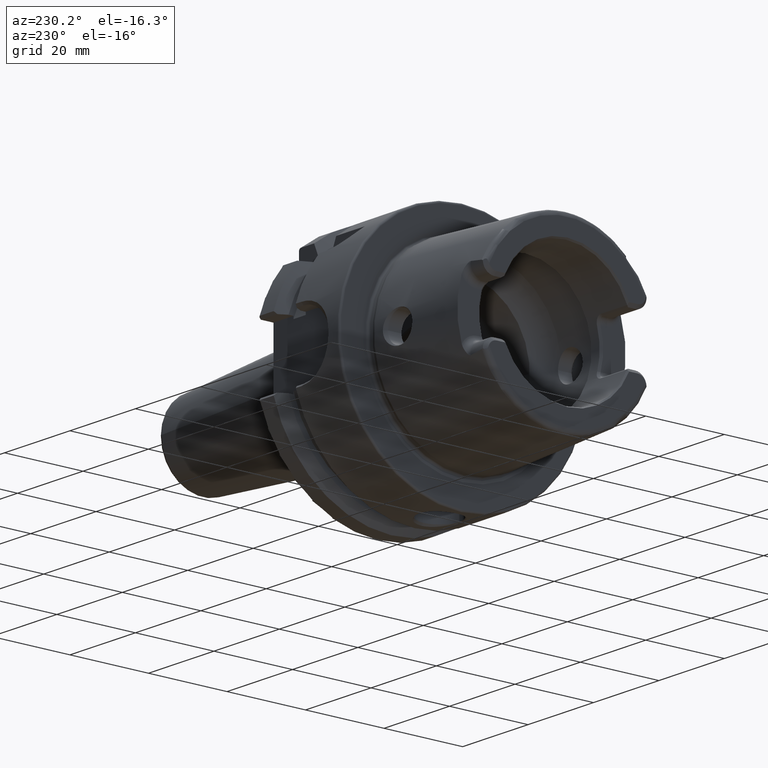
[diagram: clean part render]
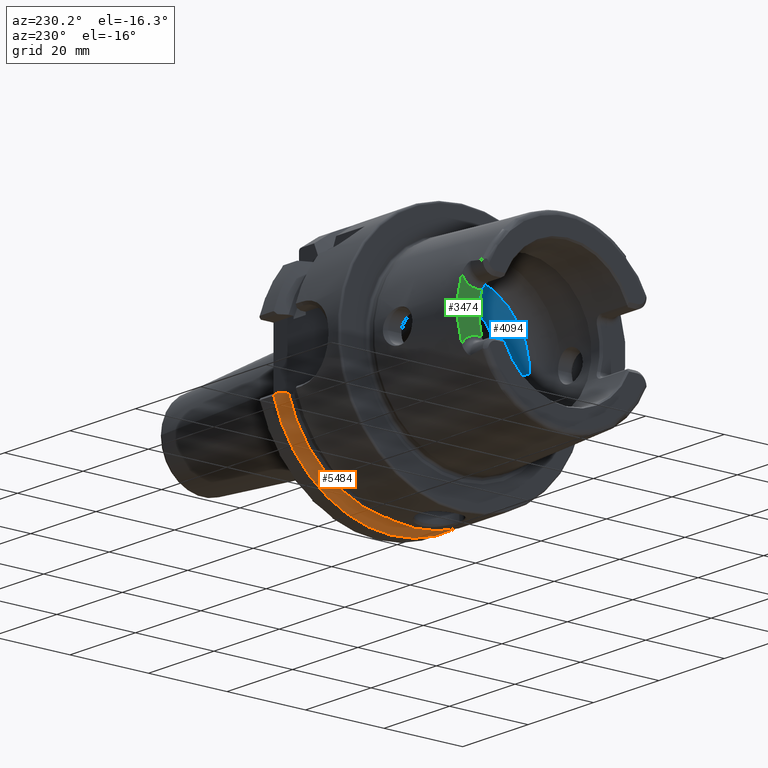
[diagram: same view with three faces highlighted in distinct colors, each labeled with its STEP entity id]
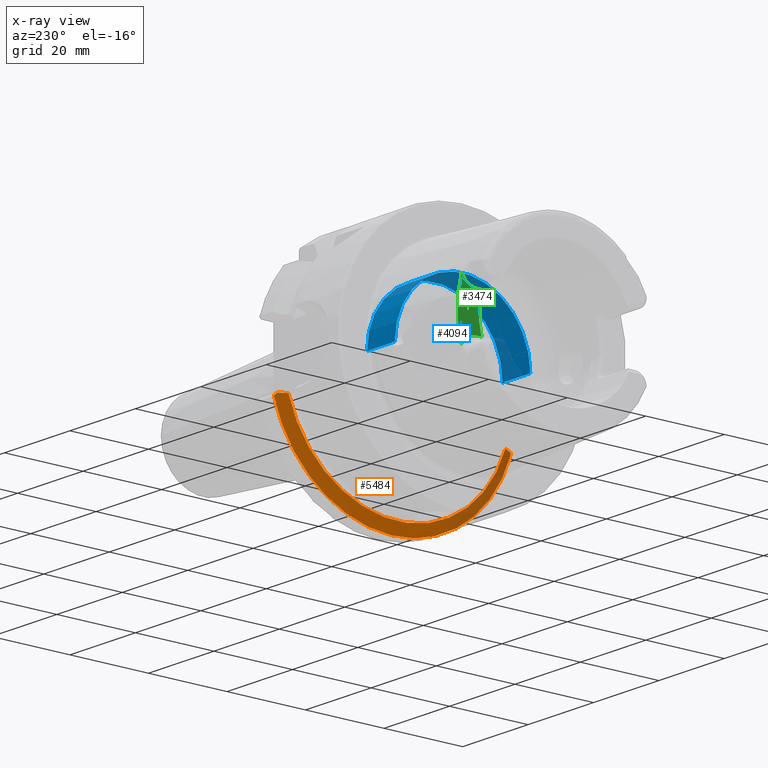
[diagram: x-ray of the same camera — body ghosted, the three highlighted faces saturated]
A machine part, auxiliary view with three faces highlighted in distinct colors.
The next image is the same camera in x-ray (body ghosted, the three faces saturated) — at least one of them is partly hidden behind the body in this view.
Their STEP definitions:

[orange] entity #5484 — the highlighted conical surface has half-angle 60 deg.
#2025=CARTESIAN_POINT('',(8.416338210270E-1,1.193014587568E0,
-3.386838789065E-1));
#2026=CARTESIAN_POINT('',(8.397325519795E-1,1.190348295228E0,
-3.360175865668E-1));
#2027=CARTESIAN_POINT('',(8.359491677279E-1,1.185035963371E0,
-3.307052547097E-1));
#2028=CARTESIAN_POINT('',(8.303316251898E-1,1.177128306281E0,
-3.227975976196E-1));
#2029=CARTESIAN_POINT('',(8.266248362832E-1,1.171896920848E0,
-3.175662121862E-1));
#2030=CARTESIAN_POINT('',(8.247810130361E-1,1.169291338583E0,
-3.149606299213E-1));
#2032=CARTESIAN_POINT('',(7.824803149606E-1,1.093234861416E0,
-3.149606299213E-1));
#2033=CARTESIAN_POINT('',(7.870729981538E-1,1.101513170390E0,
-3.149606299213E-1));
#2034=CARTESIAN_POINT('',(7.963300821951E-1,1.118184646874E0,
-3.149606299213E-1));
#2035=CARTESIAN_POINT('',(8.104299727961E-1,1.143535750108E0,
-3.149606299213E-1));
#2036=CARTESIAN_POINT('',(8.199734961844E-1,1.160667686648E0,
-3.149606299213E-1));
#2037=CARTESIAN_POINT('',(8.247810130361E-1,1.169291338583E0,
-3.149606299213E-1));
#2039=CARTESIAN_POINT('',(7.824803149606E-1,0.E0,0.E0));
#2040=DIRECTION('',(-1.E0,0.E0,0.E0));
#2041=DIRECTION('',(0.E0,9.609161313143E-1,-2.768396441624E-1));
#2042=AXIS2_PLACEMENT_3D('',#2039,#2040,#2041);
#2044=CARTESIAN_POINT('',(8.310344740385E-1,-1.169291338583E0,
-3.543307086614E-1));
#2045=CARTESIAN_POINT('',(8.254885380973E-1,-1.159254141223E0,
-3.543307086614E-1));
#2046=CARTESIAN_POINT('',(8.144971552515E-1,-1.139339874891E0,
-3.543307086614E-1));
#2047=CARTESIAN_POINT('',(7.983135657433E-1,-1.109951020004E0,
-3.543307086614E-1));
#2048=CARTESIAN_POINT('',(7.877245030106E-1,-1.090674883263E0,
-3.543307086614E-1));
#2049=CARTESIAN_POINT('',(7.824803149606E-1,-1.081116279368E0,
-3.543307086614E-1));
#2051=CARTESIAN_POINT('',(8.310344740385E-1,-1.169291338583E0,
-3.543307086614E-1));
#2052=CARTESIAN_POINT('',(8.327850921454E-1,-1.171722839934E0,
-3.567622100124E-1));
#2053=CARTESIAN_POINT('',(8.363022710633E-1,-1.176602806753E0,
-3.616421768322E-1));
#2054=CARTESIAN_POINT('',(8.398513265681E-1,-1.181516704977E0,
-3.665560750560E-1));
#2055=CARTESIAN_POINT('',(8.416338210270E-1,-1.183982137824E0,
-3.690215079028E-1));
#2057=CARTESIAN_POINT('',(8.416338210270E-1,0.E0,0.E0));
#2058=DIRECTION('',(1.E0,0.E0,0.E0));
#2059=DIRECTION('',(0.E0,-9.547030571660E-1,-2.975602000232E-1));
#2060=AXIS2_PLACEMENT_3D('',#2057,#2058,#2059);
#2819=CARTESIAN_POINT('',(7.824803149606E-1,1.093234861416E0,
-3.149606299213E-1));
#2820=VERTEX_POINT('',#2819);
#2851=CARTESIAN_POINT('',(7.824803149606E-1,-1.081116279368E0,
-3.543307086614E-1));
#2852=VERTEX_POINT('',#2851);
#3051=VERTEX_POINT('',#2051);
#3052=VERTEX_POINT('',#2055);
#3074=VERTEX_POINT('',#2025);
#3075=VERTEX_POINT('',#2030);
#5469=CARTESIAN_POINT('',(8.120570679938E-1,0.E0,0.E0));
#5470=DIRECTION('',(1.E0,0.E0,0.E0));
#5471=DIRECTION('',(0.E0,0.E0,1.E0));
#5472=AXIS2_PLACEMENT_3D('',#5469,#5470,#5471);
#5473=CONICAL_SURFACE('',#5472,1.188929041339E0,6.E1);
#5474=ORIENTED_EDGE('',*,*,#4846,.T.);
#5476=ORIENTED_EDGE('',*,*,#5475,.F.);
#5478=ORIENTED_EDGE('',*,*,#5477,.T.);
#5479=ORIENTED_EDGE('',*,*,#5428,.F.);
#5480=ORIENTED_EDGE('',*,*,#5401,.T.);
#5481=ORIENTED_EDGE('',*,*,#4750,.T.);
#5482=EDGE_LOOP('',(#5474,#5476,#5478,#5479,#5480,#5481));
#5483=FACE_OUTER_BOUND('',#5482,.F.);
#5484=ADVANCED_FACE('',(#5483),#5473,.T.);
#2031=B_SPLINE_CURVE_WITH_KNOTS('',3,(#2025,#2026,#2027,#2028,#2029,#2030),
.UNSPECIFIED.,.F.,.F.,(4,1,1,4),(0.E0,3.333333333333E-1,6.666666666667E-1,1.E0),
.UNSPECIFIED.);
#2038=B_SPLINE_CURVE_WITH_KNOTS('',3,(#2032,#2033,#2034,#2035,#2036,#2037),
.UNSPECIFIED.,.F.,.F.,(4,1,1,4),(0.E0,3.333333333333E-1,6.666666666667E-1,1.E0),
.UNSPECIFIED.);
#2043=CIRCLE('',#2042,1.137700602362E0);
#2050=B_SPLINE_CURVE_WITH_KNOTS('',3,(#2044,#2045,#2046,#2047,#2048,#2049),
.UNSPECIFIED.,.F.,.F.,(4,1,1,4),(0.E0,3.333333333333E-1,6.666666666667E-1,1.E0),
.UNSPECIFIED.);
#2056=B_SPLINE_CURVE_WITH_KNOTS('',3,(#2051,#2052,#2053,#2054,#2055),
.UNSPECIFIED.,.F.,.F.,(4,1,4),(0.E0,5.E-1,1.E0),.UNSPECIFIED.);
#2061=CIRCLE('',#2060,1.240157480315E0);
#4750=EDGE_CURVE('',#3052,#3074,#2061,.T.);
#4846=EDGE_CURVE('',#3074,#3075,#2031,.T.);
#5401=EDGE_CURVE('',#3051,#3052,#2056,.T.);
#5428=EDGE_CURVE('',#3051,#2852,#2050,.T.);
#5475=EDGE_CURVE('',#2820,#3075,#2038,.T.);
#5477=EDGE_CURVE('',#2820,#2852,#2043,.T.);

[blue] entity #4094 — the highlighted cylindrical surface (partial cylindrical patch) has radius 17.25 mm, axis along (1, 0, 0).
#841=CARTESIAN_POINT('',(0.E0,0.E0,0.E0));
#842=DIRECTION('',(1.E0,0.E0,0.E0));
#843=DIRECTION('',(0.E0,1.E0,0.E0));
#844=AXIS2_PLACEMENT_3D('',#841,#842,#843);
#851=CARTESIAN_POINT('',(3.346456692913E-1,0.E0,0.E0));
#852=DIRECTION('',(1.E0,0.E0,0.E0));
#853=DIRECTION('',(0.E0,1.E0,0.E0));
#854=AXIS2_PLACEMENT_3D('',#851,#852,#853);
#856=DIRECTION('',(1.E0,0.E0,5.379253814448E-13));
#857=VECTOR('',#856,3.346456692913E-1);
#858=CARTESIAN_POINT('',(0.E0,6.791338582677E-1,0.E0));
#859=LINE('',#858,#857);
#895=DIRECTION('',(1.E0,0.E0,-5.380587909867E-13));
#896=VECTOR('',#895,3.346456692913E-1);
#897=CARTESIAN_POINT('',(0.E0,-6.791338582677E-1,0.E0));
#898=LINE('',#897,#896);
#3146=CARTESIAN_POINT('',(0.E0,6.791338582677E-1,0.E0));
#3147=CARTESIAN_POINT('',(0.E0,-6.791338582677E-1,0.E0));
#3148=VERTEX_POINT('',#3146);
#3149=VERTEX_POINT('',#3147);
#3158=CARTESIAN_POINT('',(3.346456692913E-1,6.791338582677E-1,0.E0));
#3159=CARTESIAN_POINT('',(3.346456692913E-1,-6.791338582677E-1,0.E0));
#3160=VERTEX_POINT('',#3158);
#3161=VERTEX_POINT('',#3159);
#4080=CARTESIAN_POINT('',(0.E0,0.E0,0.E0));
#4081=DIRECTION('',(1.E0,0.E0,0.E0));
#4082=DIRECTION('',(0.E0,1.E0,0.E0));
#4083=AXIS2_PLACEMENT_3D('',#4080,#4081,#4082);
#4084=CYLINDRICAL_SURFACE('',#4083,6.791338582677E-1);
#4086=ORIENTED_EDGE('',*,*,#4085,.F.);
#4088=ORIENTED_EDGE('',*,*,#4087,.F.);
#4089=ORIENTED_EDGE('',*,*,#4069,.T.);
#4091=ORIENTED_EDGE('',*,*,#4090,.T.);
#4092=EDGE_LOOP('',(#4086,#4088,#4089,#4091));
#4093=FACE_OUTER_BOUND('',#4092,.F.);
#4094=ADVANCED_FACE('',(#4093),#4084,.F.);
#845=CIRCLE('',#844,6.791338582677E-1);
#855=CIRCLE('',#854,6.791338582677E-1);
#4069=EDGE_CURVE('',#3148,#3149,#845,.T.);
#4085=EDGE_CURVE('',#3160,#3161,#855,.T.);
#4087=EDGE_CURVE('',#3148,#3160,#859,.T.);
#4090=EDGE_CURVE('',#3149,#3161,#898,.T.);

[green] entity #3474 — the highlighted planar face has unit normal (1, 0, 0).
#226=CARTESIAN_POINT('',(-1.023622047244E0,0.E0,0.E0));
#227=DIRECTION('',(-1.E0,0.E0,0.E0));
#228=DIRECTION('',(0.E0,9.621355498715E-1,2.725714285714E-1));
#229=AXIS2_PLACEMENT_3D('',#226,#227,#228);
#231=DIRECTION('',(2.430064344398E-10,-1.E0,-3.978104337418E-9));
#232=VECTOR('',#231,4.537905031122E-2);
#233=CARTESIAN_POINT('',(-1.023622047244E0,7.082677164456E-1,
-1.877952756129E-1));
#234=LINE('',#233,#232);
#235=CARTESIAN_POINT('',(-1.023622047244E0,7.082677165354E-1,
-3.602362204724E-1));
#236=DIRECTION('',(1.E0,0.E0,0.E0));
#237=DIRECTION('',(0.E0,8.886396342024E-1,4.586061496804E-1));
#238=AXIS2_PLACEMENT_3D('',#235,#236,#237);
#240=CARTESIAN_POINT('',(-1.023622047244E0,0.E0,0.E0));
#241=DIRECTION('',(1.E0,0.E0,0.E0));
#242=DIRECTION('',(0.E0,9.506556522061E-1,-3.102480151887E-1));
#243=AXIS2_PLACEMENT_3D('',#240,#241,#242);
#245=CARTESIAN_POINT('',(-1.023622047244E0,7.082677165354E-1,
3.602362204724E-1));
#246=DIRECTION('',(-1.E0,0.E0,0.E0));
#247=DIRECTION('',(0.E0,8.886396342024E-1,-4.586061496804E-1));
#248=AXIS2_PLACEMENT_3D('',#245,#246,#247);
#250=DIRECTION('',(3.302554455999E-10,-1.E0,1.632764703557E-8));
#251=VECTOR('',#250,4.537905056368E-2);
#252=CARTESIAN_POINT('',(-1.023622047244E0,7.082677164922E-1,
1.877952756006E-1));
#253=LINE('',#252,#251);
#262=CARTESIAN_POINT('',(-1.023622047233E0,6.628886661344E-1,
-1.877952757934E-1));
#2928=CARTESIAN_POINT('',(-1.023622047244E0,8.615055747168E-1,
-2.811537426929E-1));
#2929=CARTESIAN_POINT('',(-1.023622047244E0,7.082677165354E-1,
-1.877952755906E-1));
#2930=VERTEX_POINT('',#2928);
#2931=VERTEX_POINT('',#2929);
#2940=CARTESIAN_POINT('',(-1.023622047244E0,8.615055747168E-1,
2.811537426929E-1));
#2941=CARTESIAN_POINT('',(-1.023622047244E0,7.082677165354E-1,
1.877952755906E-1));
#2942=VERTEX_POINT('',#2940);
#2943=VERTEX_POINT('',#2941);
#2946=VERTEX_POINT('',#262);
#2950=CARTESIAN_POINT('',(-1.023622047244E0,6.628886662500E-1,
1.877952755906E-1));
#2951=VERTEX_POINT('',#2950);
#3457=CARTESIAN_POINT('',(-1.023622047244E0,0.E0,2.468503937008E-1));
#3458=DIRECTION('',(1.E0,0.E0,0.E0));
#3459=DIRECTION('',(0.E0,0.E0,-1.E0));
#3460=AXIS2_PLACEMENT_3D('',#3457,#3458,#3459);
#3461=PLANE('',#3460);
#3463=ORIENTED_EDGE('',*,*,#3462,.T.);
#3465=ORIENTED_EDGE('',*,*,#3464,.F.);
#3466=ORIENTED_EDGE('',*,*,#3448,.F.);
#3467=ORIENTED_EDGE('',*,*,#3289,.T.);
#3469=ORIENTED_EDGE('',*,*,#3468,.T.);
#3471=ORIENTED_EDGE('',*,*,#3470,.T.);
#3472=EDGE_LOOP('',(#3463,#3465,#3466,#3467,#3469,#3471));
#3473=FACE_OUTER_BOUND('',#3472,.F.);
#3474=ADVANCED_FACE('',(#3473),#3461,.F.);
#230=CIRCLE('',#229,6.889763779528E-1);
#239=CIRCLE('',#238,1.724409448819E-1);
#244=CIRCLE('',#243,9.062225346450E-1);
#249=CIRCLE('',#248,1.724409448819E-1);
#3289=EDGE_CURVE('',#2930,#2942,#244,.T.);
#3448=EDGE_CURVE('',#2930,#2931,#239,.T.);
#3462=EDGE_CURVE('',#2951,#2946,#230,.T.);
#3464=EDGE_CURVE('',#2931,#2946,#234,.T.);
#3468=EDGE_CURVE('',#2942,#2943,#249,.T.);
#3470=EDGE_CURVE('',#2943,#2951,#253,.T.);